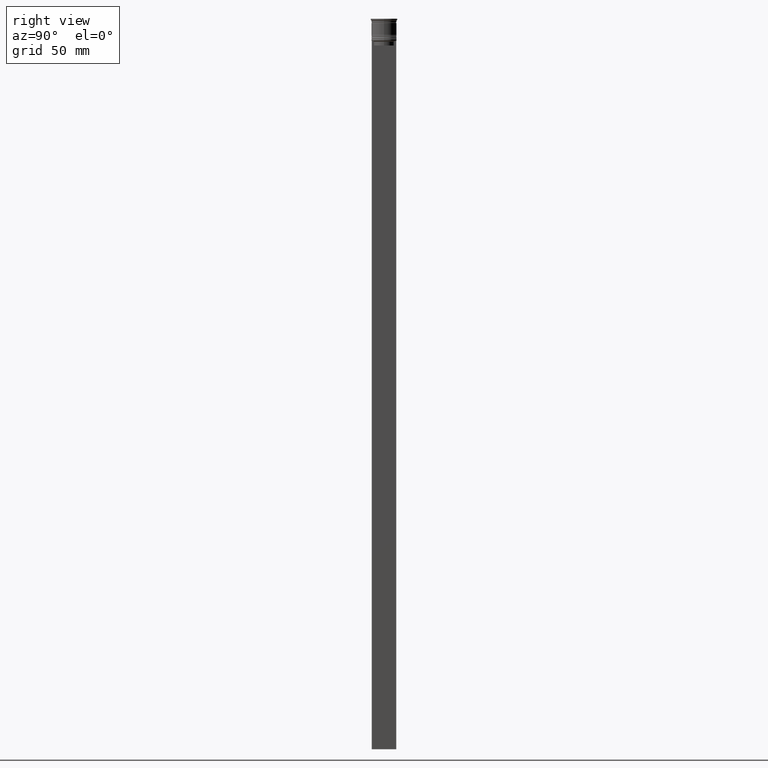
[diagram: clean part render]
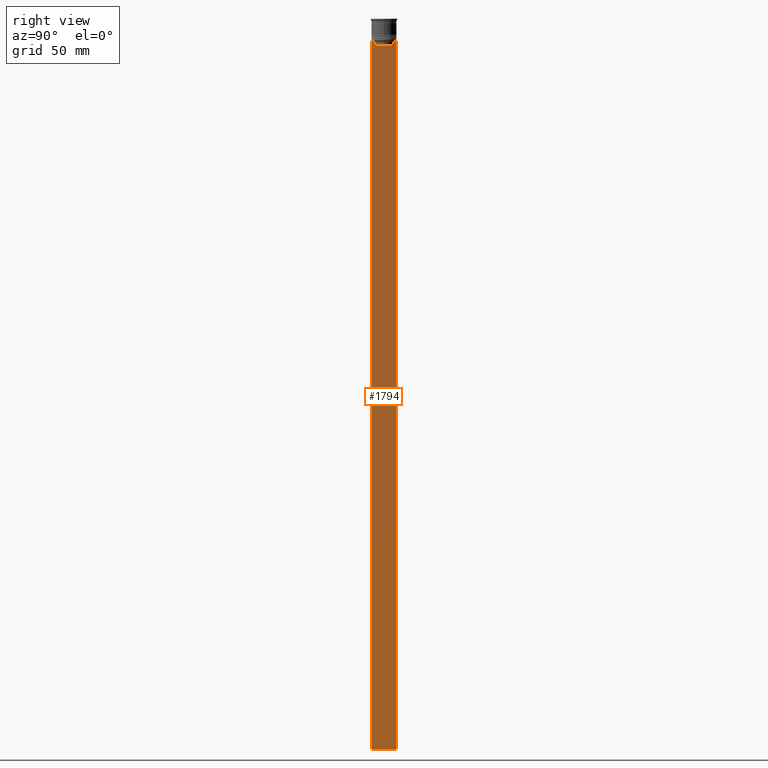
[diagram: same view with one face highlighted and labeled with its STEP entity id]
A machine part, right view. The second image highlights one B-rep face of the part: STEP entity #1794.
In plain terms, the highlighted planar face has unit normal (-1, 0, 0).
Its self-contained STEP definition (entity closure, byte-faithful):
#39 = ORIENTED_EDGE ( 'NONE', *, *, #1824, .T. ) ;
#63 = DIRECTION ( 'NONE',  ( 0.000000000000000000, 0.000000000000000000, 1.000000000000000000 ) ) ;
#98 = LINE ( 'NONE', #412, #933 ) ;
#110 = VERTEX_POINT ( 'NONE', #2209 ) ;
#117 = VECTOR ( 'NONE', #324, 1000.000000000000000 ) ;
#153 = VERTEX_POINT ( 'NONE', #2237 ) ;
#166 = CARTESIAN_POINT ( 'NONE',  ( 0.5000000000000001110, 6.380438856379708312, -14.50000000000000000 ) ) ;
#236 = VECTOR ( 'NONE', #284, 1000.000000000000000 ) ;
#249 = EDGE_CURVE ( 'NONE', #2293, #1306, #2120, .T. ) ;
#255 = ORIENTED_EDGE ( 'NONE', *, *, #354, .T. ) ;
#263 = VECTOR ( 'NONE', #492, 1000.000000000000000 ) ;
#272 = LINE ( 'NONE', #1945, #236 ) ;
#284 = DIRECTION ( 'NONE',  ( 0.000000000000000000, 1.000000000000000000, 0.000000000000000000 ) ) ;
#324 = DIRECTION ( 'NONE',  ( 0.000000000000000000, -1.000000000000000000, 0.000000000000000000 ) ) ;
#353 = VERTEX_POINT ( 'NONE', #1439 ) ;
#354 = EDGE_CURVE ( 'NONE', #903, #153, #2181, .T. ) ;
#412 = CARTESIAN_POINT ( 'NONE',  ( 0.5000000000000001110, 7.750000000000002665, 1.532224567009066840 ) ) ;
#492 = DIRECTION ( 'NONE',  ( -0.000000000000000000, -0.000000000000000000, 1.000000000000000000 ) ) ;
#518 = CARTESIAN_POINT ( 'NONE',  ( 0.5000000000000001110, -7.749999999999999112, -14.00000000000000178 ) ) ;
#526 = CARTESIAN_POINT ( 'NONE',  ( 0.5000000000000001110, -6.380438856379708312, -17.00000000000000000 ) ) ;
#624 = VECTOR ( 'NONE', #705, 1000.000000000000000 ) ;
#695 = DIRECTION ( 'NONE',  ( 0.000000000000000000, 0.000000000000000000, -1.000000000000000000 ) ) ;
#705 = DIRECTION ( 'NONE',  ( 0.000000000000000000, 0.000000000000000000, -1.000000000000000000 ) ) ;
#714 = CARTESIAN_POINT ( 'NONE',  ( 0.5000000000000001110, 6.881860213634098500, -14.00000000000000178 ) ) ;
#719 = DIRECTION ( 'NONE',  ( 0.000000000000000000, -1.000000000000000000, 0.000000000000000000 ) ) ;
#721 = B_SPLINE_CURVE_WITH_KNOTS ( 'NONE', 3,
 ( #1237, #2153, #1609, #1581 ),
 .UNSPECIFIED., .F., .F.,
 ( 4, 4 ),
 ( 0.02996184199614751464, 0.03067452609193705923 ),
 .UNSPECIFIED. ) ;
#750 = VERTEX_POINT ( 'NONE', #714 ) ;
#812 = CARTESIAN_POINT ( 'NONE',  ( 0.5000000000000001110, -7.749999999999999112, 1.532224567009066840 ) ) ;
#829 = B_SPLINE_CURVE_WITH_KNOTS ( 'NONE', 3,
 ( #1090, #1840, #1631, #166 ),
 .UNSPECIFIED., .F., .F.,
 ( 4, 4 ),
 ( 0.01172465562756038263, 0.01243276816391822651 ),
 .UNSPECIFIED. ) ;
#840 = ORIENTED_EDGE ( 'NONE', *, *, #2298, .T. ) ;
#901 = EDGE_CURVE ( 'NONE', #1999, #903, #721, .T. ) ;
#903 = VERTEX_POINT ( 'NONE', #1181 ) ;
#904 = LINE ( 'NONE', #1850, #624 ) ;
#929 = CARTESIAN_POINT ( 'NONE',  ( 0.5000000000000001110, 6.380438856379708312, -17.00000000000000000 ) ) ;
#933 = VECTOR ( 'NONE', #1706, 1000.000000000000000 ) ;
#982 = CARTESIAN_POINT ( 'NONE',  ( 0.5000000000000001110, -6.380438856379708312, -14.50000000000000000 ) ) ;
#987 = EDGE_CURVE ( 'NONE', #2338, #1999, #1242, .T. ) ;
#1061 = DIRECTION ( 'NONE',  ( 0.000000000000000000, -1.000000000000000000, 0.000000000000000000 ) ) ;
#1081 = AXIS2_PLACEMENT_3D ( 'NONE', #812, #2314, #63 ) ;
#1085 = VECTOR ( 'NONE', #719, 1000.000000000000000 ) ;
#1090 = CARTESIAN_POINT ( 'NONE',  ( 0.5000000000000001110, 6.881860213634098500, -14.00000000000000178 ) ) ;
#1106 = EDGE_CURVE ( 'NONE', #1360, #110, #98, .T. ) ;
#1164 = ORIENTED_EDGE ( 'NONE', *, *, #901, .T. ) ;
#1181 = CARTESIAN_POINT ( 'NONE',  ( 0.5000000000000001110, -6.881860213634098500, -14.00000000000000178 ) ) ;
#1237 = CARTESIAN_POINT ( 'NONE',  ( 0.5000000000000001110, -6.380438856379708312, -14.50000000000000000 ) ) ;
#1242 = LINE ( 'NONE', #1456, #263 ) ;
#1306 = VERTEX_POINT ( 'NONE', #929 ) ;
#1311 = VECTOR ( 'NONE', #1061, 1000.000000000000000 ) ;
#1360 = VERTEX_POINT ( 'NONE', #1729 ) ;
#1439 = CARTESIAN_POINT ( 'NONE',  ( 0.5000000000000001110, -7.749999999999999112, -464.0000000000000000 ) ) ;
#1456 = CARTESIAN_POINT ( 'NONE',  ( 0.5000000000000001110, -6.380438856379708312, 0.000000000000000000 ) ) ;
#1471 = LINE ( 'NONE', #2395, #117 ) ;
#1485 = EDGE_CURVE ( 'NONE', #1360, #750, #1471, .T. ) ;
#1547 = PLANE ( 'NONE',  #1081 ) ;
#1581 = CARTESIAN_POINT ( 'NONE',  ( 0.5000000000000001110, -6.881860213634098500, -14.00000000000000178 ) ) ;
#1608 = EDGE_LOOP ( 'NONE', ( #1842, #1618, #2098, #840, #2245, #1164, #255, #2271, #39, #2137 ) ) ;
#1609 = CARTESIAN_POINT ( 'NONE',  ( 0.5000000000000001110, -6.714736947305993908, -14.16668390685738821 ) ) ;
#1618 = ORIENTED_EDGE ( 'NONE', *, *, #2308, .T. ) ;
#1631 = CARTESIAN_POINT ( 'NONE',  ( 0.5000000000000001110, 6.547597841304911626, -14.33335192459222718 ) ) ;
#1669 = CARTESIAN_POINT ( 'NONE',  ( 0.5000000000000001110, 6.380438856379708312, -14.50000000000000000 ) ) ;
#1706 = DIRECTION ( 'NONE',  ( 0.000000000000000000, 0.000000000000000000, -1.000000000000000000 ) ) ;
#1724 = FACE_OUTER_BOUND ( 'NONE', #1608, .T. ) ;
#1729 = CARTESIAN_POINT ( 'NONE',  ( 0.5000000000000001110, 7.750000000000002665, -14.00000000000000178 ) ) ;
#1794 = ADVANCED_FACE ( 'NONE', ( #1724 ), #1547, .F. ) ;
#1824 = EDGE_CURVE ( 'NONE', #353, #110, #272, .T. ) ;
#1840 = CARTESIAN_POINT ( 'NONE',  ( 0.5000000000000001110, 6.714736947114692711, -14.16668390704818847 ) ) ;
#1842 = ORIENTED_EDGE ( 'NONE', *, *, #1485, .T. ) ;
#1850 = CARTESIAN_POINT ( 'NONE',  ( 0.5000000000000001110, -7.749999999999999112, 1.532224567009066840 ) ) ;
#1945 = CARTESIAN_POINT ( 'NONE',  ( 0.5000000000000001110, -7.749999999999999112, -464.0000000000000000 ) ) ;
#1992 = CARTESIAN_POINT ( 'NONE',  ( 0.5000000000000001110, 6.380438856379708312, 0.000000000000000000 ) ) ;
#1999 = VERTEX_POINT ( 'NONE', #982 ) ;
#2041 = CARTESIAN_POINT ( 'NONE',  ( 0.5000000000000001110, 6.399999999999999467, -17.00000000000000000 ) ) ;
#2098 = ORIENTED_EDGE ( 'NONE', *, *, #249, .T. ) ;
#2120 = LINE ( 'NONE', #1992, #2122 ) ;
#2122 = VECTOR ( 'NONE', #695, 1000.000000000000000 ) ;
#2137 = ORIENTED_EDGE ( 'NONE', *, *, #1106, .F. ) ;
#2153 = CARTESIAN_POINT ( 'NONE',  ( 0.5000000000000001110, -6.547597841511247019, -14.33335192438652150 ) ) ;
#2181 = LINE ( 'NONE', #518, #1311 ) ;
#2209 = CARTESIAN_POINT ( 'NONE',  ( 0.5000000000000001110, 7.750000000000002665, -464.0000000000000000 ) ) ;
#2237 = CARTESIAN_POINT ( 'NONE',  ( 0.5000000000000001110, -7.749999999999999112, -14.00000000000000178 ) ) ;
#2245 = ORIENTED_EDGE ( 'NONE', *, *, #987, .T. ) ;
#2271 = ORIENTED_EDGE ( 'NONE', *, *, #2325, .T. ) ;
#2293 = VERTEX_POINT ( 'NONE', #1669 ) ;
#2298 = EDGE_CURVE ( 'NONE', #1306, #2338, #2399, .T. ) ;
#2308 = EDGE_CURVE ( 'NONE', #750, #2293, #829, .T. ) ;
#2314 = DIRECTION ( 'NONE',  ( -1.000000000000000000, 0.000000000000000000, 0.000000000000000000 ) ) ;
#2325 = EDGE_CURVE ( 'NONE', #153, #353, #904, .T. ) ;
#2338 = VERTEX_POINT ( 'NONE', #526 ) ;
#2395 = CARTESIAN_POINT ( 'NONE',  ( 0.5000000000000001110, -7.749999999999999112, -14.00000000000000178 ) ) ;
#2399 = LINE ( 'NONE', #2041, #1085 ) ;